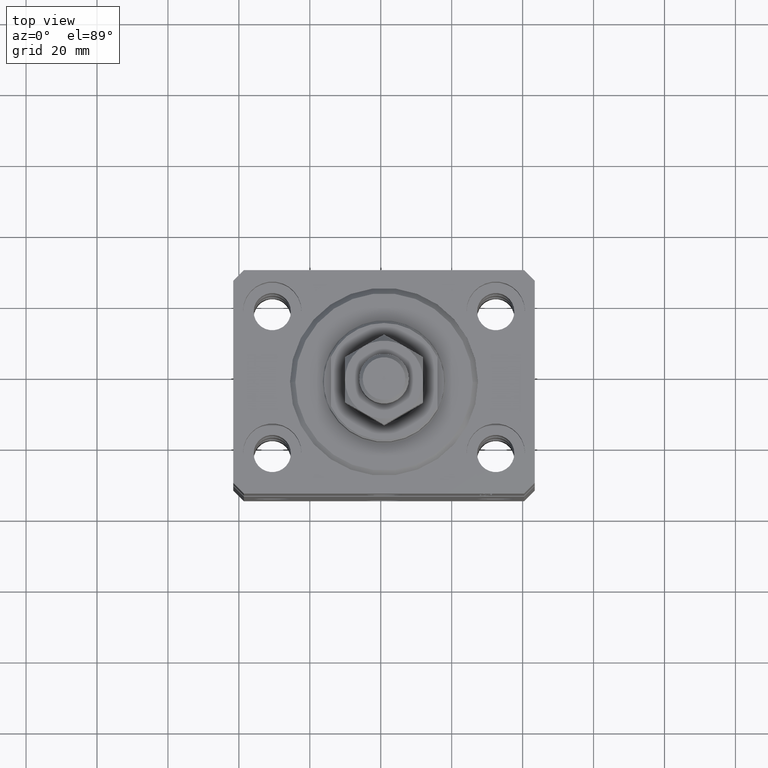
[diagram: clean part render]
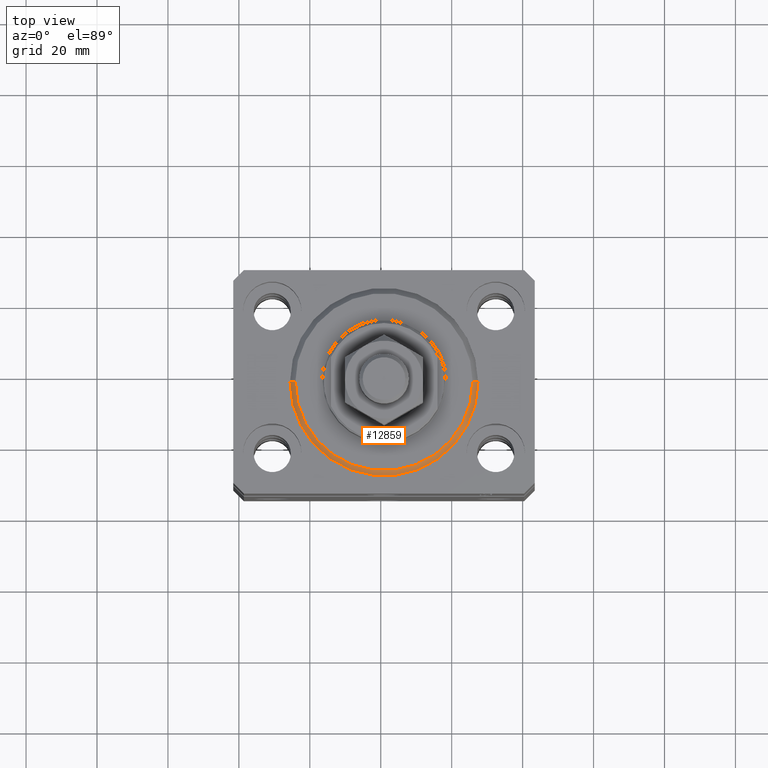
[diagram: same view with one face highlighted and labeled with its STEP entity id]
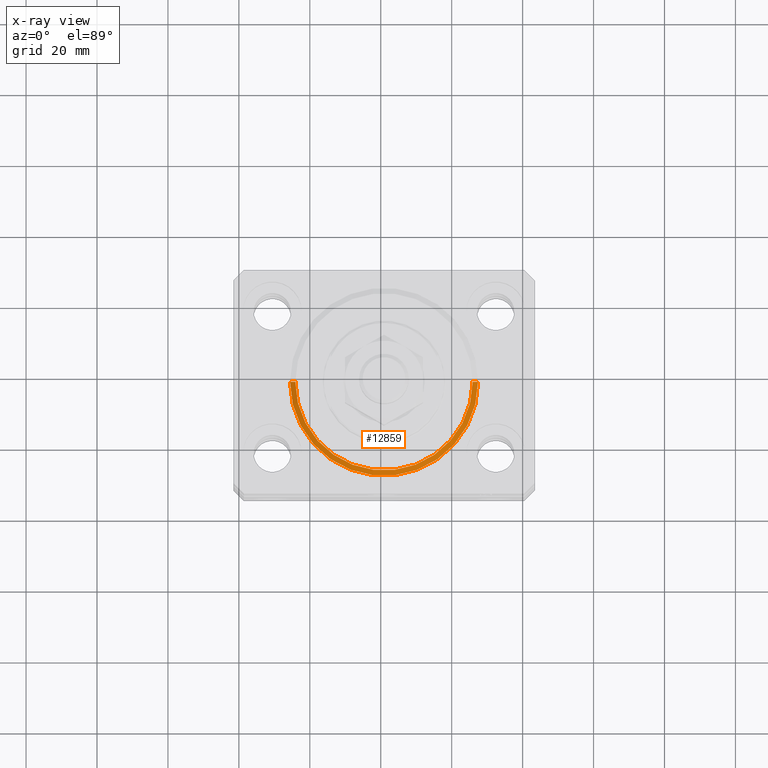
[diagram: x-ray of the same camera — body ghosted, the highlighted face saturated]
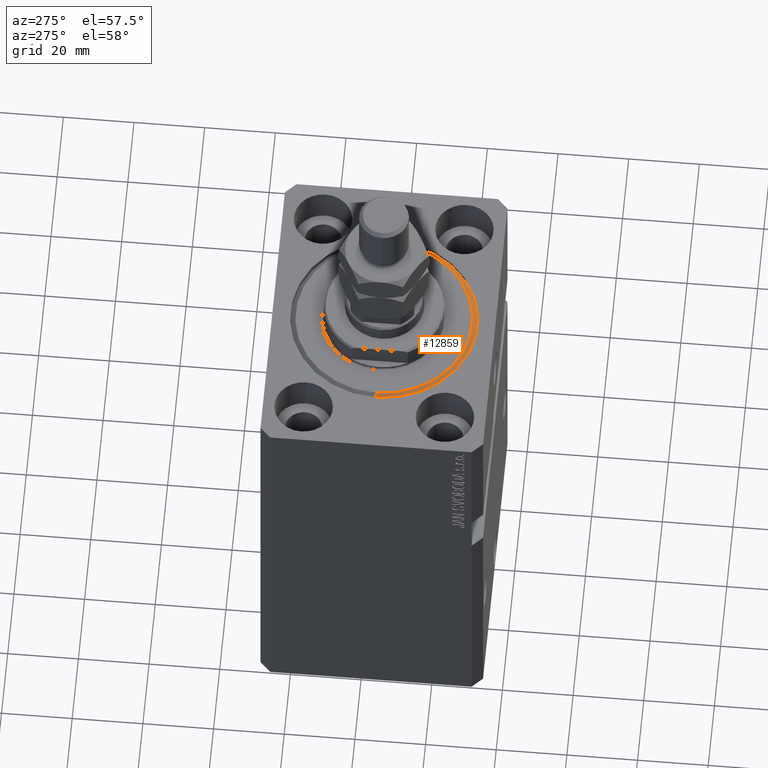
[diagram: same view with one face highlighted and labeled with its STEP entity id]
A machine part, top view. The second image highlights one B-rep face of the part: STEP entity #12859.
The next image is the same camera in x-ray: the body ghosted, the highlighted face saturated — about 0% of this face is hidden behind the body in this view.
A second angle (auxiliary view) of the same face is appended — the face is thin or edge-on in the first view.
In plain terms, the highlighted conical surface has half-angle 45 deg.
Its self-contained STEP definition (entity closure, byte-faithful):
#2553 = DIRECTION ( 'NONE',  ( 1.000000000000000000, 0.000000000000000000, 0.000000000000000000 ) ) ;
#5645 = EDGE_LOOP ( 'NONE', ( #23410, #20767, #28036, #40483 ) ) ;
#9286 = EDGE_CURVE ( 'NONE', #10200, #33854, #17054, .T. ) ;
#9516 = CARTESIAN_POINT ( 'NONE',  ( -24.99999999999998224, 3.153465507804433615E-15, 0.000000000000000000 ) ) ;
#9701 = FACE_OUTER_BOUND ( 'NONE', #5645, .T. ) ;
#9779 = DIRECTION ( 'NONE',  ( -0.000000000000000000, -0.000000000000000000, -1.000000000000000000 ) ) ;
#10200 = VERTEX_POINT ( 'NONE', #37737 ) ;
#10584 = CARTESIAN_POINT ( 'NONE',  ( 26.50000000000000355, 3.245314017740486554E-15, 1.500000000000018652 ) ) ;
#12859 = ADVANCED_FACE ( 'NONE', ( #9701 ), #38263, .T. ) ;
#13252 = AXIS2_PLACEMENT_3D ( 'NONE', #14772, #40661, #19289 ) ;
#14713 = CARTESIAN_POINT ( 'NONE',  ( 24.99999999999998224, 0.000000000000000000, 0.000000000000000000 ) ) ;
#14772 = CARTESIAN_POINT ( 'NONE',  ( 0.000000000000000000, 0.000000000000000000, 1.500000000000018652 ) ) ;
#16769 = EDGE_CURVE ( 'NONE', #43693, #33854, #38509, .T. ) ;
#16958 = DIRECTION ( 'NONE',  ( -0.7071067811865483499, 8.659560562354942719E-17, 0.7071067811865466846 ) ) ;
#17054 = CIRCLE ( 'NONE', #13252, 26.50000000000000355 ) ;
#17751 = AXIS2_PLACEMENT_3D ( 'NONE', #28063, #9779, #39219 ) ;
#17803 = AXIS2_PLACEMENT_3D ( 'NONE', #20614, #35099, #2553 ) ;
#19289 = DIRECTION ( 'NONE',  ( 1.000000000000000000, 0.000000000000000000, 0.000000000000000000 ) ) ;
#20614 = CARTESIAN_POINT ( 'NONE',  ( 0.000000000000000000, 0.000000000000000000, 1.500000000000018652 ) ) ;
#20767 = ORIENTED_EDGE ( 'NONE', *, *, #29067, .F. ) ;
#21209 = CARTESIAN_POINT ( 'NONE',  ( -26.50000000000000355, 3.245314017740486554E-15, 1.500000000000018652 ) ) ;
#23410 = ORIENTED_EDGE ( 'NONE', *, *, #34079, .F. ) ;
#27585 = DIRECTION ( 'NONE',  ( 0.7071067811865483499, 0.000000000000000000, 0.7071067811865466846 ) ) ;
#28036 = ORIENTED_EDGE ( 'NONE', *, *, #16769, .T. ) ;
#28063 = CARTESIAN_POINT ( 'NONE',  ( 0.000000000000000000, 0.000000000000000000, 0.000000000000000000 ) ) ;
#28531 = VECTOR ( 'NONE', #16958, 1000.000000000000000 ) ;
#29067 = EDGE_CURVE ( 'NONE', #43693, #42451, #38964, .T. ) ;
#33854 = VERTEX_POINT ( 'NONE', #10584 ) ;
#34079 = EDGE_CURVE ( 'NONE', #42451, #10200, #35473, .T. ) ;
#35099 = DIRECTION ( 'NONE',  ( -0.000000000000000000, -0.000000000000000000, 1.000000000000000000 ) ) ;
#35473 = LINE ( 'NONE', #21209, #28531 ) ;
#35676 = VECTOR ( 'NONE', #27585, 1000.000000000000000 ) ;
#37737 = CARTESIAN_POINT ( 'NONE',  ( -26.50000000000000355, 0.000000000000000000, 1.500000000000018652 ) ) ;
#38263 = CONICAL_SURFACE ( 'NONE', #17803, 26.50000000000000355, 0.7853981633974495002 ) ;
#38509 = LINE ( 'NONE', #40078, #35676 ) ;
#38964 = CIRCLE ( 'NONE', #17751, 24.99999999999998224 ) ;
#39219 = DIRECTION ( 'NONE',  ( 1.000000000000000000, 0.000000000000000000, 0.000000000000000000 ) ) ;
#40078 = CARTESIAN_POINT ( 'NONE',  ( 26.50000000000000355, 0.000000000000000000, 1.500000000000018652 ) ) ;
#40483 = ORIENTED_EDGE ( 'NONE', *, *, #9286, .F. ) ;
#40661 = DIRECTION ( 'NONE',  ( -0.000000000000000000, -0.000000000000000000, 1.000000000000000000 ) ) ;
#42451 = VERTEX_POINT ( 'NONE', #9516 ) ;
#43693 = VERTEX_POINT ( 'NONE', #14713 ) ;